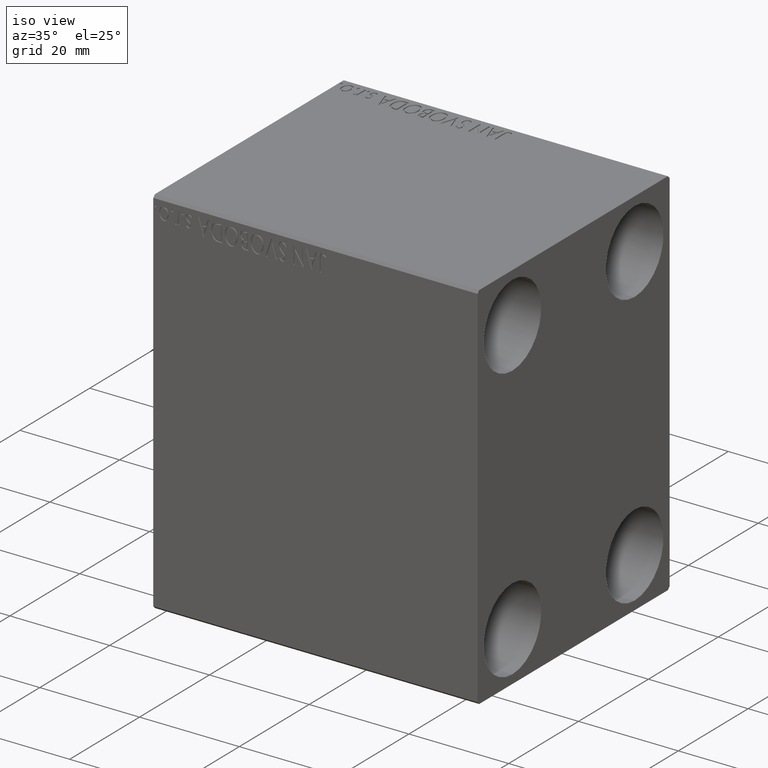
[diagram: clean part render]
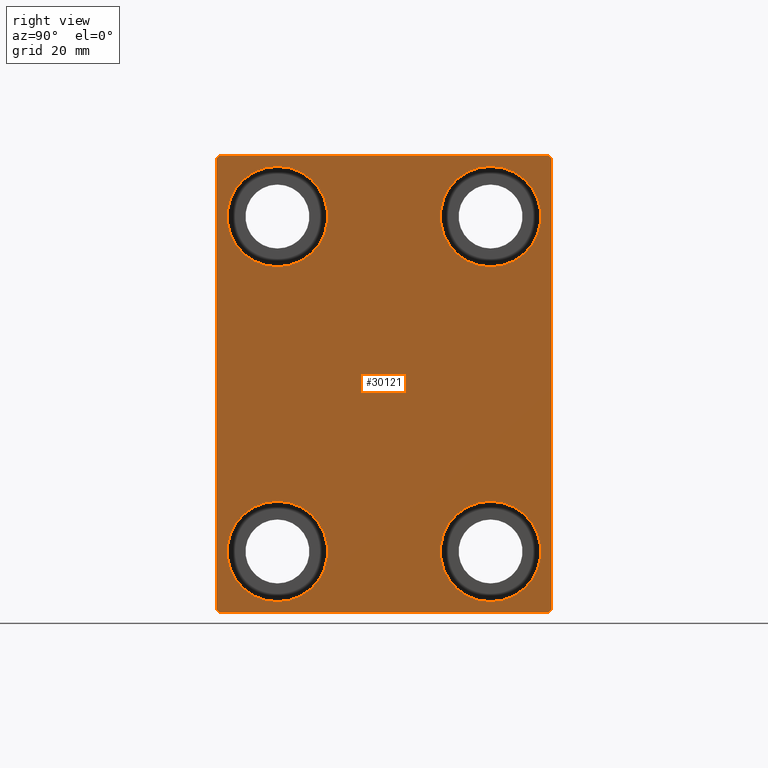
[diagram: tour spotlight — one face highlighted and labeled with its STEP entity id]
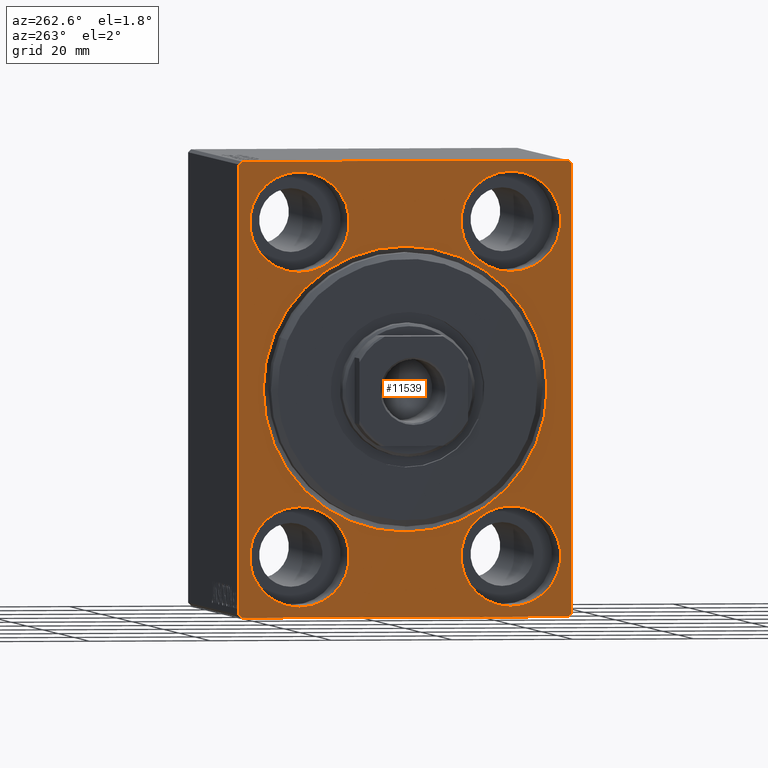
[diagram: tour spotlight — one face highlighted and labeled with its STEP entity id]
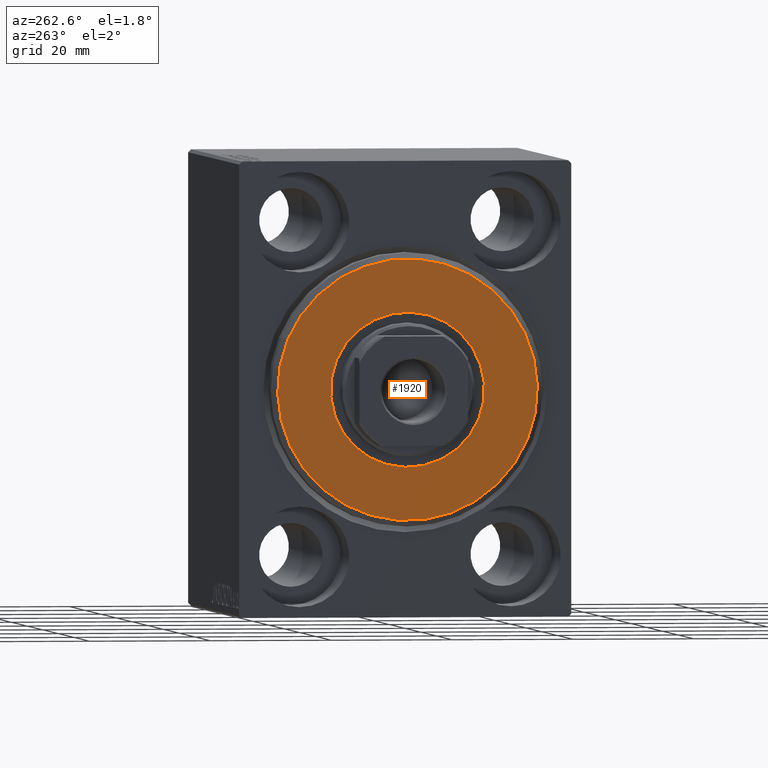
[diagram: tour spotlight — one face highlighted and labeled with its STEP entity id]
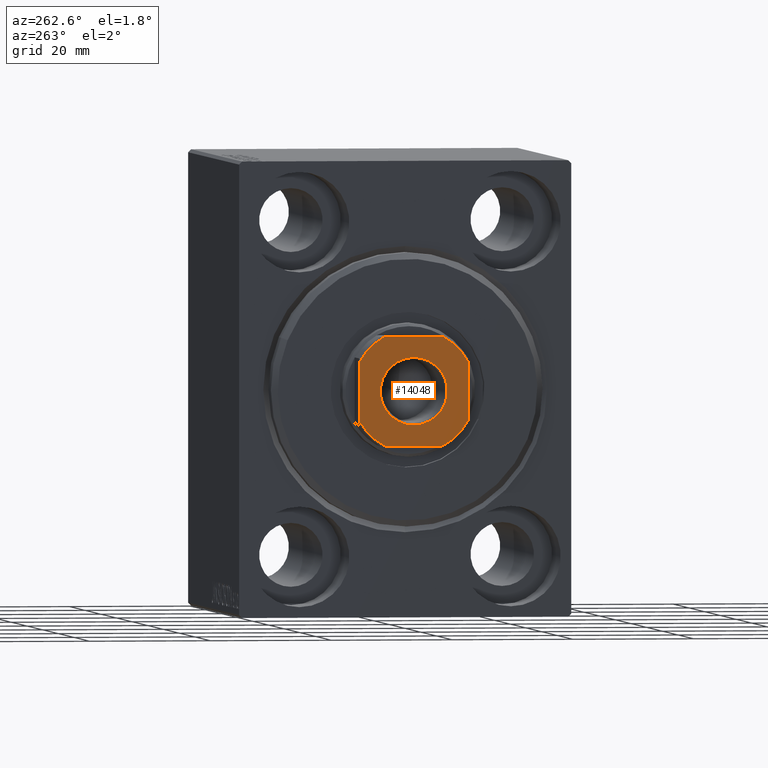
[diagram: tour spotlight — one face highlighted and labeled with its STEP entity id]
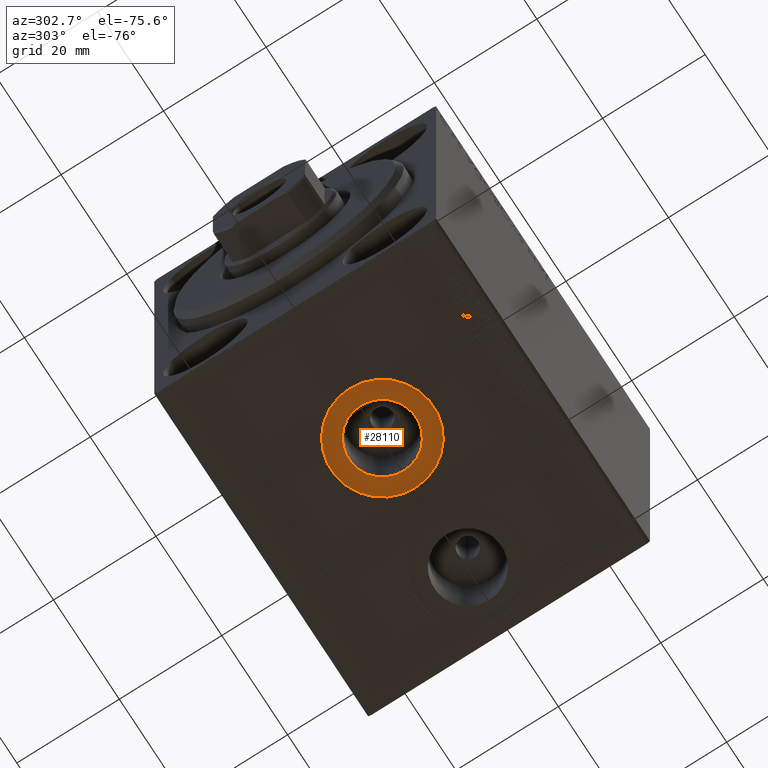
[diagram: tour spotlight — one face highlighted and labeled with its STEP entity id]
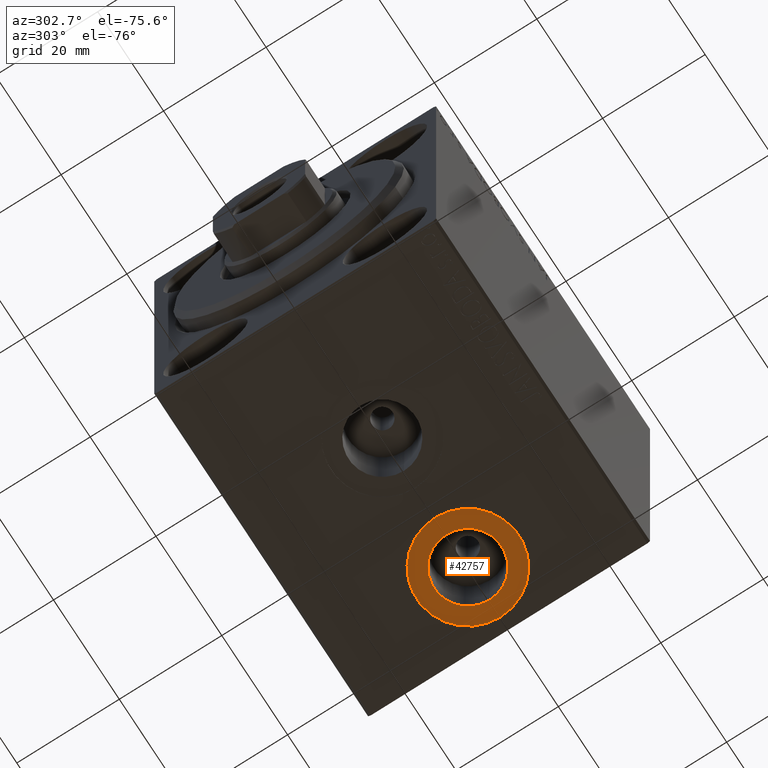
[diagram: tour spotlight — one face highlighted and labeled with its STEP entity id]
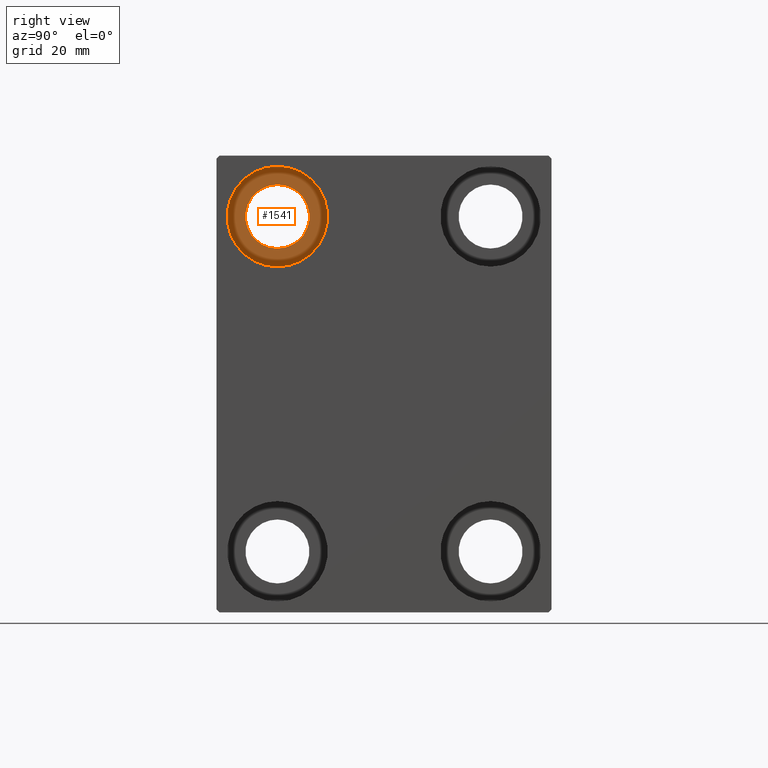
[diagram: tour spotlight — one face highlighted and labeled with its STEP entity id]
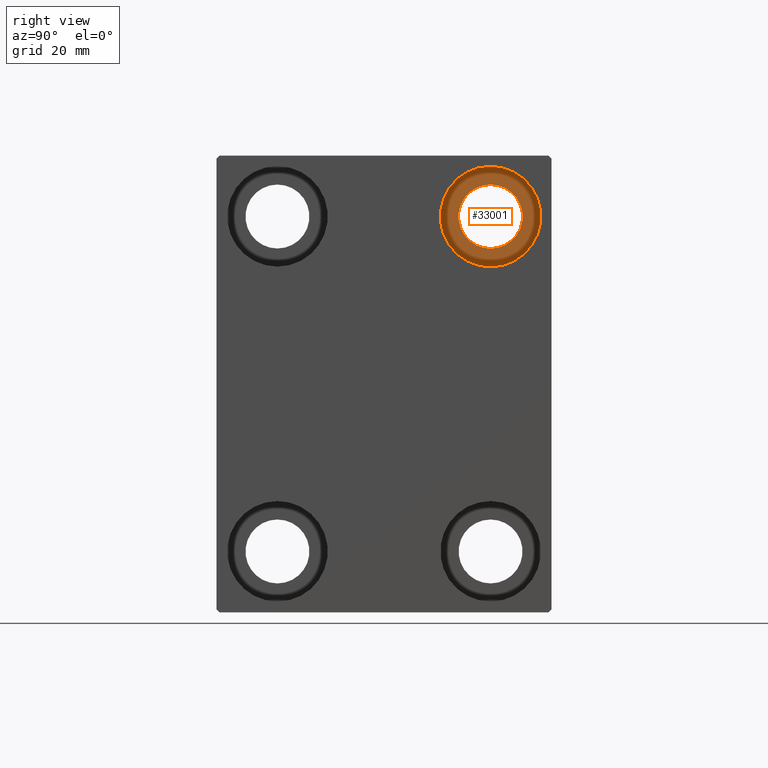
[diagram: tour spotlight — one face highlighted and labeled with its STEP entity id]
A machine part: a face-by-face anatomy tour. The part has 863 B-rep faces; the first image is the clean iso view, then the 8 largest visible faces are spotlighted one at a time (largest first), each with its STEP entity span.

Face 1 — right view, entity #30121. In plain terms, the highlighted planar face has unit normal (1, 0, 0).
Definition (entity closure, byte-faithful):
#98 = CARTESIAN_POINT ( 'NONE',  ( 65.00000000000000000, 27.49999999999999645, 37.00000000000001421 ) ) ;
#599 = EDGE_CURVE ( 'NONE', #32429, #30256, #36534, .T. ) ;
#761 = CARTESIAN_POINT ( 'NONE',  ( 65.00000000000000000, 32.25000000000000000, -32.25000000000000000 ) ) ;
#989 = CARTESIAN_POINT ( 'NONE',  ( 65.00000000000000000, -27.00000000000001776, 37.50000000000000000 ) ) ;
#1179 = AXIS2_PLACEMENT_3D ( 'NONE', #40835, #27710, #11004 ) ;
#1396 = VECTOR ( 'NONE', #28116, 1000.000000000000114 ) ;
#1515 = VECTOR ( 'NONE', #19771, 1000.000000000000114 ) ;
#2836 = EDGE_LOOP ( 'NONE', ( #11291, #17372, #38720, #3877, #37813, #42291, #23204, #38900 ) ) ;
#3219 = VERTEX_POINT ( 'NONE', #35655 ) ;
#3543 = EDGE_CURVE ( 'NONE', #36718, #31319, #25532, .T. ) ;
#3586 = CIRCLE ( 'NONE', #28461, 8.249999999999992895 ) ;
#3877 = ORIENTED_EDGE ( 'NONE', *, *, #26525, .T. ) ;
#4671 = CARTESIAN_POINT ( 'NONE',  ( 65.00000000000000000, 17.50000000000000355, 19.25000000000000000 ) ) ;
#5135 = DIRECTION ( 'NONE',  ( 0.000000000000000000, 0.000000000000000000, 1.000000000000000000 ) ) ;
#5476 = CARTESIAN_POINT ( 'NONE',  ( 65.00000000000000000, 17.49999999999999645, -35.75000000000000711 ) ) ;
#5935 = CARTESIAN_POINT ( 'NONE',  ( 65.00000000000000000, -17.49999999999999645, 27.49999999999999645 ) ) ;
#5950 = CARTESIAN_POINT ( 'NONE',  ( 65.00000000000000000, 17.50000000000000355, 27.49999999999999645 ) ) ;
#6148 = CARTESIAN_POINT ( 'NONE',  ( 65.00000000000000000, 32.25000000000019185, 32.24999999999975131 ) ) ;
#6959 = ORIENTED_EDGE ( 'NONE', *, *, #35752, .T. ) ;
#7450 = FACE_BOUND ( 'NONE', #19241, .T. ) ;
#8625 = CARTESIAN_POINT ( 'NONE',  ( 65.00000000000000000, -27.50000000000000355, 37.50000000000000000 ) ) ;
#8668 = CARTESIAN_POINT ( 'NONE',  ( 65.00000000000000000, 27.50000000000000355, -37.50000000000000000 ) ) ;
#9235 = DIRECTION ( 'NONE',  ( 0.000000000000000000, 0.000000000000000000, 1.000000000000000000 ) ) ;
#9704 = DIRECTION ( 'NONE',  ( -0.000000000000000000, -0.7071067811865426878, 0.7071067811865524577 ) ) ;
#10735 = EDGE_CURVE ( 'NONE', #24308, #18189, #21228, .T. ) ;
#11004 = DIRECTION ( 'NONE',  ( 0.000000000000000000, 0.000000000000000000, -1.000000000000000000 ) ) ;
#11066 = CARTESIAN_POINT ( 'NONE',  ( 65.00000000000000000, 17.49999999999999645, -19.25000000000000355 ) ) ;
#11109 = VERTEX_POINT ( 'NONE', #25107 ) ;
#11291 = ORIENTED_EDGE ( 'NONE', *, *, #599, .T. ) ;
#11778 = LINE ( 'NONE', #8668, #12699 ) ;
#12699 = VECTOR ( 'NONE', #34941, 1000.000000000000000 ) ;
#12752 = CIRCLE ( 'NONE', #33384, 8.249999999999992895 ) ;
#12831 = DIRECTION ( 'NONE',  ( -1.000000000000000000, -0.000000000000000000, -0.000000000000000000 ) ) ;
#12883 = EDGE_CURVE ( 'NONE', #43611, #32460, #12752, .T. ) ;
#13013 = DIRECTION ( 'NONE',  ( -1.000000000000000000, -0.000000000000000000, -0.000000000000000000 ) ) ;
#13064 = DIRECTION ( 'NONE',  ( 0.000000000000000000, 0.000000000000000000, 1.000000000000000000 ) ) ;
#13406 = DIRECTION ( 'NONE',  ( -1.000000000000000000, -0.000000000000000000, -0.000000000000000000 ) ) ;
#13696 = FACE_OUTER_BOUND ( 'NONE', #2836, .T. ) ;
#13907 = FACE_BOUND ( 'NONE', #34967, .T. ) ;
#14129 = FACE_BOUND ( 'NONE', #26330, .T. ) ;
#14473 = CARTESIAN_POINT ( 'NONE',  ( 65.00000000000000000, 27.00000000000000355, -37.50000000000000000 ) ) ;
#15846 = DIRECTION ( 'NONE',  ( -1.000000000000000000, -0.000000000000000000, -0.000000000000000000 ) ) ;
#15876 = CARTESIAN_POINT ( 'NONE',  ( 65.00000000000000000, -27.50000000000000355, -37.00000000000000000 ) ) ;
#16269 = AXIS2_PLACEMENT_3D ( 'NONE', #38186, #18381, #21935 ) ;
#16356 = EDGE_CURVE ( 'NONE', #3219, #34688, #3586, .T. ) ;
#16361 = CARTESIAN_POINT ( 'NONE',  ( 65.00000000000000000, -17.50000000000000355, -27.50000000000000355 ) ) ;
#16978 = ORIENTED_EDGE ( 'NONE', *, *, #21692, .T. ) ;
#17372 = ORIENTED_EDGE ( 'NONE', *, *, #23091, .T. ) ;
#18189 = VERTEX_POINT ( 'NONE', #11066 ) ;
#18381 = DIRECTION ( 'NONE',  ( -1.000000000000000000, -0.000000000000000000, -0.000000000000000000 ) ) ;
#19135 = CIRCLE ( 'NONE', #27648, 8.249999999999992895 ) ;
#19241 = EDGE_LOOP ( 'NONE', ( #26247, #6959 ) ) ;
#19313 = EDGE_LOOP ( 'NONE', ( #16978, #29129 ) ) ;
#19469 = CARTESIAN_POINT ( 'NONE',  ( 65.00000000000000000, -27.00000000000000355, -37.50000000000000000 ) ) ;
#19531 = DIRECTION ( 'NONE',  ( -1.000000000000000000, -0.000000000000000000, -0.000000000000000000 ) ) ;
#19548 = LINE ( 'NONE', #43342, #1515 ) ;
#19771 = DIRECTION ( 'NONE',  ( 0.000000000000000000, -0.7071067811865474617, -0.7071067811865474617 ) ) ;
#19847 = CARTESIAN_POINT ( 'NONE',  ( 65.00000000000000000, 27.49999999999999645, 37.50000000000000711 ) ) ;
#19964 = CARTESIAN_POINT ( 'NONE',  ( 65.00000000000000000, 27.50000000000000355, -37.00000000000000000 ) ) ;
#20186 = VERTEX_POINT ( 'NONE', #19964 ) ;
#20385 = VERTEX_POINT ( 'NONE', #42374 ) ;
#20501 = AXIS2_PLACEMENT_3D ( 'NONE', #5935, #12831, #25962 ) ;
#20536 = DIRECTION ( 'NONE',  ( 0.000000000000000000, 0.000000000000000000, 1.000000000000000000 ) ) ;
#20607 = AXIS2_PLACEMENT_3D ( 'NONE', #16361, #13013, #9235 ) ;
#21228 = CIRCLE ( 'NONE', #23341, 8.250000000000000000 ) ;
#21338 = LINE ( 'NONE', #34897, #37337 ) ;
#21692 = EDGE_CURVE ( 'NONE', #20385, #11109, #26447, .T. ) ;
#21883 = LINE ( 'NONE', #761, #1396 ) ;
#21935 = DIRECTION ( 'NONE',  ( 0.000000000000000000, 0.000000000000000000, 1.000000000000000000 ) ) ;
#22241 = EDGE_CURVE ( 'NONE', #42733, #38491, #37065, .T. ) ;
#22633 = DIRECTION ( 'NONE',  ( 0.000000000000000000, 0.000000000000000000, -1.000000000000000000 ) ) ;
#23091 = EDGE_CURVE ( 'NONE', #30256, #36718, #19548, .T. ) ;
#23204 = ORIENTED_EDGE ( 'NONE', *, *, #40600, .T. ) ;
#23252 = ORIENTED_EDGE ( 'NONE', *, *, #10735, .T. ) ;
#23341 = AXIS2_PLACEMENT_3D ( 'NONE', #42493, #42920, #5135 ) ;
#24308 = VERTEX_POINT ( 'NONE', #5476 ) ;
#25107 = CARTESIAN_POINT ( 'NONE',  ( 65.00000000000000000, -17.50000000000000355, -19.25000000000000355 ) ) ;
#25532 = LINE ( 'NONE', #8625, #31125 ) ;
#25962 = DIRECTION ( 'NONE',  ( 0.000000000000000000, 0.000000000000000000, 1.000000000000000000 ) ) ;
#26016 = CARTESIAN_POINT ( 'NONE',  ( 65.00000000000000000, -27.50000000000000355, 37.00000000000001421 ) ) ;
#26247 = ORIENTED_EDGE ( 'NONE', *, *, #12883, .T. ) ;
#26330 = EDGE_LOOP ( 'NONE', ( #27647, #30171 ) ) ;
#26447 = CIRCLE ( 'NONE', #28581, 8.250000000000000000 ) ;
#26525 = EDGE_CURVE ( 'NONE', #31319, #42733, #21338, .T. ) ;
#27273 = PLANE ( 'NONE',  #1179 ) ;
#27516 = VECTOR ( 'NONE', #37410, 1000.000000000000000 ) ;
#27647 = ORIENTED_EDGE ( 'NONE', *, *, #37115, .T. ) ;
#27648 = AXIS2_PLACEMENT_3D ( 'NONE', #37040, #34360, #37253 ) ;
#27710 = DIRECTION ( 'NONE',  ( 1.000000000000000000, 0.000000000000000000, 0.000000000000000000 ) ) ;
#27872 = CARTESIAN_POINT ( 'NONE',  ( 65.00000000000000000, -17.49999999999999645, 35.74999999999999289 ) ) ;
#27927 = FACE_BOUND ( 'NONE', #19313, .T. ) ;
#28116 = DIRECTION ( 'NONE',  ( -0.000000000000000000, 0.7071067811865474617, 0.7071067811865474617 ) ) ;
#28403 = CIRCLE ( 'NONE', #20607, 8.250000000000000000 ) ;
#28461 = AXIS2_PLACEMENT_3D ( 'NONE', #5950, #19531, #13064 ) ;
#28581 = AXIS2_PLACEMENT_3D ( 'NONE', #39447, #13406, #20536 ) ;
#28978 = CARTESIAN_POINT ( 'NONE',  ( 65.00000000000000000, -17.49999999999999645, 27.49999999999999645 ) ) ;
#29129 = ORIENTED_EDGE ( 'NONE', *, *, #44026, .T. ) ;
#29411 = DIRECTION ( 'NONE',  ( 0.000000000000000000, 0.000000000000000000, 1.000000000000000000 ) ) ;
#29713 = DIRECTION ( 'NONE',  ( 0.000000000000000000, 1.000000000000000000, 0.000000000000000000 ) ) ;
#30121 = ADVANCED_FACE ( 'NONE', ( #13907, #7450, #14129, #27927, #13696 ), #27273, .T. ) ;
#30171 = ORIENTED_EDGE ( 'NONE', *, *, #16356, .T. ) ;
#30256 = VERTEX_POINT ( 'NONE', #989 ) ;
#31125 = VECTOR ( 'NONE', #22633, 1000.000000000000000 ) ;
#31319 = VERTEX_POINT ( 'NONE', #15876 ) ;
#32001 = DIRECTION ( 'NONE',  ( -0.000000000000000000, 0.7071067811865474617, -0.7071067811865474617 ) ) ;
#32429 = VERTEX_POINT ( 'NONE', #34536 ) ;
#32460 = VERTEX_POINT ( 'NONE', #27872 ) ;
#33075 = LINE ( 'NONE', #6148, #37585 ) ;
#33384 = AXIS2_PLACEMENT_3D ( 'NONE', #28978, #15846, #29411 ) ;
#34360 = DIRECTION ( 'NONE',  ( -1.000000000000000000, -0.000000000000000000, -0.000000000000000000 ) ) ;
#34536 = CARTESIAN_POINT ( 'NONE',  ( 65.00000000000000000, 27.00000000000001066, 37.50000000000000711 ) ) ;
#34688 = VERTEX_POINT ( 'NONE', #4671 ) ;
#34897 = CARTESIAN_POINT ( 'NONE',  ( 65.00000000000000000, -32.25000000000000000, -32.25000000000000000 ) ) ;
#34941 = DIRECTION ( 'NONE',  ( 0.000000000000000000, -9.251858538542970348E-17, 1.000000000000000000 ) ) ;
#34967 = EDGE_LOOP ( 'NONE', ( #23252, #40154 ) ) ;
#35655 = CARTESIAN_POINT ( 'NONE',  ( 65.00000000000000000, 17.50000000000000355, 35.74999999999999289 ) ) ;
#35752 = EDGE_CURVE ( 'NONE', #32460, #43611, #41108, .T. ) ;
#36534 = LINE ( 'NONE', #19847, #27516 ) ;
#36718 = VERTEX_POINT ( 'NONE', #26016 ) ;
#37002 = EDGE_CURVE ( 'NONE', #18189, #24308, #43249, .T. ) ;
#37040 = CARTESIAN_POINT ( 'NONE',  ( 65.00000000000000000, 17.50000000000000355, 27.49999999999999645 ) ) ;
#37065 = LINE ( 'NONE', #40394, #42102 ) ;
#37074 = VERTEX_POINT ( 'NONE', #98 ) ;
#37115 = EDGE_CURVE ( 'NONE', #34688, #3219, #19135, .T. ) ;
#37253 = DIRECTION ( 'NONE',  ( 0.000000000000000000, 0.000000000000000000, 1.000000000000000000 ) ) ;
#37337 = VECTOR ( 'NONE', #32001, 1000.000000000000114 ) ;
#37410 = DIRECTION ( 'NONE',  ( 0.000000000000000000, -1.000000000000000000, -1.261617073437677999E-16 ) ) ;
#37585 = VECTOR ( 'NONE', #9704, 1000.000000000000000 ) ;
#37813 = ORIENTED_EDGE ( 'NONE', *, *, #22241, .T. ) ;
#38186 = CARTESIAN_POINT ( 'NONE',  ( 65.00000000000000000, 17.49999999999999645, -27.50000000000000355 ) ) ;
#38491 = VERTEX_POINT ( 'NONE', #14473 ) ;
#38685 = CARTESIAN_POINT ( 'NONE',  ( 65.00000000000000000, -17.49999999999999645, 19.25000000000000000 ) ) ;
#38720 = ORIENTED_EDGE ( 'NONE', *, *, #3543, .T. ) ;
#38900 = ORIENTED_EDGE ( 'NONE', *, *, #40941, .T. ) ;
#39447 = CARTESIAN_POINT ( 'NONE',  ( 65.00000000000000000, -17.50000000000000355, -27.50000000000000355 ) ) ;
#40154 = ORIENTED_EDGE ( 'NONE', *, *, #37002, .T. ) ;
#40394 = CARTESIAN_POINT ( 'NONE',  ( 65.00000000000000000, -27.50000000000000355, -37.50000000000000000 ) ) ;
#40600 = EDGE_CURVE ( 'NONE', #20186, #37074, #11778, .T. ) ;
#40835 = CARTESIAN_POINT ( 'NONE',  ( 65.00000000000000000, 0.000000000000000000, 0.000000000000000000 ) ) ;
#40941 = EDGE_CURVE ( 'NONE', #37074, #32429, #33075, .T. ) ;
#41108 = CIRCLE ( 'NONE', #20501, 8.249999999999992895 ) ;
#42102 = VECTOR ( 'NONE', #29713, 1000.000000000000000 ) ;
#42291 = ORIENTED_EDGE ( 'NONE', *, *, #43157, .T. ) ;
#42374 = CARTESIAN_POINT ( 'NONE',  ( 65.00000000000000000, -17.50000000000000355, -35.75000000000000711 ) ) ;
#42493 = CARTESIAN_POINT ( 'NONE',  ( 65.00000000000000000, 17.49999999999999645, -27.50000000000000355 ) ) ;
#42733 = VERTEX_POINT ( 'NONE', #19469 ) ;
#42920 = DIRECTION ( 'NONE',  ( -1.000000000000000000, -0.000000000000000000, -0.000000000000000000 ) ) ;
#43157 = EDGE_CURVE ( 'NONE', #38491, #20186, #21883, .T. ) ;
#43249 = CIRCLE ( 'NONE', #16269, 8.250000000000000000 ) ;
#43342 = CARTESIAN_POINT ( 'NONE',  ( 65.00000000000000000, -32.25000000000000711, 32.25000000000000711 ) ) ;
#43611 = VERTEX_POINT ( 'NONE', #38685 ) ;
#44026 = EDGE_CURVE ( 'NONE', #11109, #20385, #28403, .T. ) ;

Face 2 — auxiliary view, entity #11539. In plain terms, the highlighted planar face has unit normal (1, 0, 0).
Definition (entity closure, byte-faithful):
#642 = DIRECTION ( 'NONE',  ( 0.000000000000000000, -0.7071067811865474617, -0.7071067811865474617 ) ) ;
#654 = AXIS2_PLACEMENT_3D ( 'NONE', #17769, #1275, #4623 ) ;
#1189 = DIRECTION ( 'NONE',  ( 0.000000000000000000, 0.000000000000000000, 1.000000000000000000 ) ) ;
#1275 = DIRECTION ( 'NONE',  ( -1.000000000000000000, 0.000000000000000000, 0.000000000000000000 ) ) ;
#1334 = CIRCLE ( 'NONE', #654, 8.249999999999992895 ) ;
#2422 = CARTESIAN_POINT ( 'NONE',  ( 0.000000000000000000, -17.49999999999999645, 19.25000000000000000 ) ) ;
#2745 = AXIS2_PLACEMENT_3D ( 'NONE', #3158, #36548, #37209 ) ;
#2863 = EDGE_CURVE ( 'NONE', #20121, #25001, #32855, .T. ) ;
#3158 = CARTESIAN_POINT ( 'NONE',  ( 0.000000000000000000, 17.49999999999999645, -27.50000000000000355 ) ) ;
#3474 = CIRCLE ( 'NONE', #36152, 23.50000000000001776 ) ;
#3819 = CARTESIAN_POINT ( 'NONE',  ( 0.000000000000000000, 27.50000000000000355, -37.50000000000000000 ) ) ;
#4536 = DIRECTION ( 'NONE',  ( 0.000000000000000000, 0.000000000000000000, -1.000000000000000000 ) ) ;
#4623 = DIRECTION ( 'NONE',  ( 0.000000000000000000, 0.000000000000000000, 1.000000000000000000 ) ) ;
#4820 = CARTESIAN_POINT ( 'NONE',  ( 0.000000000000000000, 17.50000000000000355, 35.74999999999999289 ) ) ;
#4881 = CIRCLE ( 'NONE', #21932, 8.250000000000000000 ) ;
#5241 = EDGE_LOOP ( 'NONE', ( #35364, #26739 ) ) ;
#5954 = VERTEX_POINT ( 'NONE', #28430 ) ;
#5985 = DIRECTION ( 'NONE',  ( -1.000000000000000000, 0.000000000000000000, 0.000000000000000000 ) ) ;
#6824 = EDGE_CURVE ( 'NONE', #41565, #21162, #43837, .T. ) ;
#6872 = CARTESIAN_POINT ( 'NONE',  ( 0.000000000000000000, 27.50000000000000355, -37.00000000000000000 ) ) ;
#7054 = AXIS2_PLACEMENT_3D ( 'NONE', #36489, #9124, #4536 ) ;
#7097 = LINE ( 'NONE', #6872, #21265 ) ;
#7587 = DIRECTION ( 'NONE',  ( 0.000000000000000000, 0.000000000000000000, 1.000000000000000000 ) ) ;
#7693 = CARTESIAN_POINT ( 'NONE',  ( 0.000000000000000000, 17.50000000000000355, 27.49999999999999645 ) ) ;
#8150 = ORIENTED_EDGE ( 'NONE', *, *, #11337, .T. ) ;
#8553 = DIRECTION ( 'NONE',  ( 0.000000000000000000, 0.000000000000000000, -1.000000000000000000 ) ) ;
#8640 = CIRCLE ( 'NONE', #33508, 8.250000000000000000 ) ;
#8665 = CARTESIAN_POINT ( 'NONE',  ( 0.000000000000000000, 17.49999999999999645, -35.75000000000000711 ) ) ;
#8979 = LINE ( 'NONE', #25885, #9056 ) ;
#9056 = VECTOR ( 'NONE', #8553, 1000.000000000000000 ) ;
#9124 = DIRECTION ( 'NONE',  ( 1.000000000000000000, 0.000000000000000000, 0.000000000000000000 ) ) ;
#9294 = EDGE_CURVE ( 'NONE', #32549, #5954, #22614, .T. ) ;
#9331 = EDGE_CURVE ( 'NONE', #14145, #25001, #18054, .T. ) ;
#10037 = EDGE_CURVE ( 'NONE', #33890, #29724, #37578, .T. ) ;
#10272 = DIRECTION ( 'NONE',  ( 0.000000000000000000, -9.251858538542970348E-17, 1.000000000000000000 ) ) ;
#10778 = CARTESIAN_POINT ( 'NONE',  ( 0.000000000000000000, 17.50000000000000355, 27.49999999999999645 ) ) ;
#11047 = EDGE_LOOP ( 'NONE', ( #27465, #40716 ) ) ;
#11321 = ORIENTED_EDGE ( 'NONE', *, *, #37572, .F. ) ;
#11337 = EDGE_CURVE ( 'NONE', #16134, #22721, #25487, .T. ) ;
#11539 = ADVANCED_FACE ( 'NONE', ( #43144, #41907, #12674, #21460, #39383, #39830 ), #42927, .F. ) ;
#11975 = LINE ( 'NONE', #38256, #20274 ) ;
#12210 = VERTEX_POINT ( 'NONE', #21896 ) ;
#12674 = FACE_BOUND ( 'NONE', #15771, .T. ) ;
#12923 = CARTESIAN_POINT ( 'NONE',  ( 0.000000000000000000, -27.50000000000000355, -37.00000000000000000 ) ) ;
#13502 = DIRECTION ( 'NONE',  ( 0.000000000000000000, 0.000000000000000000, -1.000000000000000000 ) ) ;
#13725 = EDGE_CURVE ( 'NONE', #21162, #41565, #26960, .T. ) ;
#14145 = VERTEX_POINT ( 'NONE', #34474 ) ;
#14262 = LINE ( 'NONE', #31604, #34970 ) ;
#15564 = ORIENTED_EDGE ( 'NONE', *, *, #38711, .F. ) ;
#15714 = CARTESIAN_POINT ( 'NONE',  ( 0.000000000000000000, 0.000000000000000000, 0.000000000000000000 ) ) ;
#15771 = EDGE_LOOP ( 'NONE', ( #15564, #11321 ) ) ;
#15775 = VECTOR ( 'NONE', #17285, 1000.000000000000114 ) ;
#15940 = CARTESIAN_POINT ( 'NONE',  ( 0.000000000000000000, -17.50000000000000355, -27.50000000000000355 ) ) ;
#16134 = VERTEX_POINT ( 'NONE', #21126 ) ;
#16424 = VERTEX_POINT ( 'NONE', #26632 ) ;
#16836 = ORIENTED_EDGE ( 'NONE', *, *, #33186, .F. ) ;
#16908 = AXIS2_PLACEMENT_3D ( 'NONE', #15714, #42403, #32847 ) ;
#17285 = DIRECTION ( 'NONE',  ( -0.000000000000000000, 0.7071067811865474617, 0.7071067811865474617 ) ) ;
#17769 = CARTESIAN_POINT ( 'NONE',  ( 0.000000000000000000, -17.49999999999999645, 27.49999999999999645 ) ) ;
#18054 = LINE ( 'NONE', #3819, #24734 ) ;
#18816 = CARTESIAN_POINT ( 'NONE',  ( 0.000000000000000000, -27.00000000000000355, -37.50000000000000000 ) ) ;
#19137 = EDGE_CURVE ( 'NONE', #5954, #32549, #8640, .T. ) ;
#19168 = CIRCLE ( 'NONE', #34792, 8.249999999999992895 ) ;
#19170 = CARTESIAN_POINT ( 'NONE',  ( 0.000000000000000000, -17.50000000000000355, -19.25000000000000355 ) ) ;
#19692 = DIRECTION ( 'NONE',  ( -0.000000000000000000, -0.7071067811865474617, 0.7071067811865474617 ) ) ;
#19723 = CARTESIAN_POINT ( 'NONE',  ( 0.000000000000000000, 27.00000000000001066, 37.50000000000000711 ) ) ;
#19791 = DIRECTION ( 'NONE',  ( 0.000000000000000000, 0.000000000000000000, 1.000000000000000000 ) ) ;
#19818 = ORIENTED_EDGE ( 'NONE', *, *, #13725, .F. ) ;
#19960 = EDGE_CURVE ( 'NONE', #20121, #24948, #14262, .T. ) ;
#20121 = VERTEX_POINT ( 'NONE', #43308 ) ;
#20171 = EDGE_CURVE ( 'NONE', #16424, #24948, #23292, .T. ) ;
#20274 = VECTOR ( 'NONE', #32225, 1000.000000000000000 ) ;
#21126 = CARTESIAN_POINT ( 'NONE',  ( 0.000000000000000000, -27.00000000000000355, -37.50000000000000000 ) ) ;
#21162 = VERTEX_POINT ( 'NONE', #4820 ) ;
#21265 = VECTOR ( 'NONE', #642, 1000.000000000000114 ) ;
#21460 = FACE_BOUND ( 'NONE', #30746, .T. ) ;
#21497 = CARTESIAN_POINT ( 'NONE',  ( 0.000000000000000000, -17.49999999999999645, 35.74999999999999289 ) ) ;
#21865 = CIRCLE ( 'NONE', #16908, 23.50000000000001776 ) ;
#21896 = CARTESIAN_POINT ( 'NONE',  ( 0.000000000000000000, 2.877919977996282293E-15, -23.50000000000001776 ) ) ;
#21932 = AXIS2_PLACEMENT_3D ( 'NONE', #30846, #24392, #23731 ) ;
#22410 = DIRECTION ( 'NONE',  ( 0.000000000000000000, 0.000000000000000000, 1.000000000000000000 ) ) ;
#22488 = ORIENTED_EDGE ( 'NONE', *, *, #32989, .T. ) ;
#22614 = CIRCLE ( 'NONE', #41792, 8.250000000000000000 ) ;
#22721 = VERTEX_POINT ( 'NONE', #12923 ) ;
#23292 = LINE ( 'NONE', #29973, #15775 ) ;
#23570 = CARTESIAN_POINT ( 'NONE',  ( 0.000000000000000000, -17.49999999999999645, 27.49999999999999645 ) ) ;
#23731 = DIRECTION ( 'NONE',  ( 0.000000000000000000, 0.000000000000000000, 1.000000000000000000 ) ) ;
#24288 = CARTESIAN_POINT ( 'NONE',  ( 0.000000000000000000, -17.50000000000000355, -27.50000000000000355 ) ) ;
#24360 = VERTEX_POINT ( 'NONE', #29286 ) ;
#24392 = DIRECTION ( 'NONE',  ( -1.000000000000000000, 0.000000000000000000, 0.000000000000000000 ) ) ;
#24705 = ORIENTED_EDGE ( 'NONE', *, *, #2863, .T. ) ;
#24734 = VECTOR ( 'NONE', #10272, 1000.000000000000000 ) ;
#24948 = VERTEX_POINT ( 'NONE', #36351 ) ;
#25001 = VERTEX_POINT ( 'NONE', #30558 ) ;
#25487 = LINE ( 'NONE', #18816, #36875 ) ;
#25531 = DIRECTION ( 'NONE',  ( -1.000000000000000000, 0.000000000000000000, 0.000000000000000000 ) ) ;
#25752 = EDGE_LOOP ( 'NONE', ( #22488, #28778 ) ) ;
#25885 = CARTESIAN_POINT ( 'NONE',  ( 0.000000000000000000, -27.50000000000000355, 37.50000000000000000 ) ) ;
#26594 = EDGE_CURVE ( 'NONE', #16134, #24360, #11975, .T. ) ;
#26632 = CARTESIAN_POINT ( 'NONE',  ( 0.000000000000000000, -27.50000000000000355, 37.00000000000001421 ) ) ;
#26739 = ORIENTED_EDGE ( 'NONE', *, *, #19137, .F. ) ;
#26960 = CIRCLE ( 'NONE', #32647, 8.249999999999992895 ) ;
#27299 = DIRECTION ( 'NONE',  ( 1.000000000000000000, 0.000000000000000000, 0.000000000000000000 ) ) ;
#27465 = ORIENTED_EDGE ( 'NONE', *, *, #36768, .F. ) ;
#28430 = CARTESIAN_POINT ( 'NONE',  ( 0.000000000000000000, -17.50000000000000355, -35.75000000000000711 ) ) ;
#28778 = ORIENTED_EDGE ( 'NONE', *, *, #36828, .T. ) ;
#29286 = CARTESIAN_POINT ( 'NONE',  ( 0.000000000000000000, 27.00000000000000355, -37.50000000000000000 ) ) ;
#29325 = ORIENTED_EDGE ( 'NONE', *, *, #41520, .T. ) ;
#29724 = VERTEX_POINT ( 'NONE', #35363 ) ;
#29973 = CARTESIAN_POINT ( 'NONE',  ( 0.000000000000000000, -27.50000000000000355, 37.00000000000001421 ) ) ;
#30460 = CARTESIAN_POINT ( 'NONE',  ( 0.000000000000000000, 17.50000000000000355, 19.25000000000000000 ) ) ;
#30558 = CARTESIAN_POINT ( 'NONE',  ( 0.000000000000000000, 27.49999999999999645, 37.00000000000001421 ) ) ;
#30746 = EDGE_LOOP ( 'NONE', ( #19818, #34852 ) ) ;
#30846 = CARTESIAN_POINT ( 'NONE',  ( 0.000000000000000000, 17.49999999999999645, -27.50000000000000355 ) ) ;
#31604 = CARTESIAN_POINT ( 'NONE',  ( 0.000000000000000000, 27.49999999999999645, 37.50000000000000711 ) ) ;
#31711 = DIRECTION ( 'NONE',  ( 0.000000000000000000, 0.000000000000000000, 1.000000000000000000 ) ) ;
#32052 = ORIENTED_EDGE ( 'NONE', *, *, #20171, .T. ) ;
#32225 = DIRECTION ( 'NONE',  ( 0.000000000000000000, 1.000000000000000000, 0.000000000000000000 ) ) ;
#32549 = VERTEX_POINT ( 'NONE', #19170 ) ;
#32647 = AXIS2_PLACEMENT_3D ( 'NONE', #10778, #34576, #1189 ) ;
#32847 = DIRECTION ( 'NONE',  ( 0.000000000000000000, 0.000000000000000000, -1.000000000000000000 ) ) ;
#32855 = LINE ( 'NONE', #19723, #33923 ) ;
#32989 = EDGE_CURVE ( 'NONE', #39903, #12210, #21865, .T. ) ;
#33186 = EDGE_CURVE ( 'NONE', #16424, #22721, #8979, .T. ) ;
#33508 = AXIS2_PLACEMENT_3D ( 'NONE', #15940, #25531, #22410 ) ;
#33890 = VERTEX_POINT ( 'NONE', #8665 ) ;
#33923 = VECTOR ( 'NONE', #37076, 1000.000000000000000 ) ;
#34306 = DIRECTION ( 'NONE',  ( -1.000000000000000000, 0.000000000000000000, 0.000000000000000000 ) ) ;
#34474 = CARTESIAN_POINT ( 'NONE',  ( 0.000000000000000000, 27.50000000000000355, -37.00000000000000000 ) ) ;
#34576 = DIRECTION ( 'NONE',  ( -1.000000000000000000, 0.000000000000000000, 0.000000000000000000 ) ) ;
#34792 = AXIS2_PLACEMENT_3D ( 'NONE', #23570, #5985, #19791 ) ;
#34852 = ORIENTED_EDGE ( 'NONE', *, *, #6824, .F. ) ;
#34970 = VECTOR ( 'NONE', #41610, 1000.000000000000000 ) ;
#35363 = CARTESIAN_POINT ( 'NONE',  ( 0.000000000000000000, 17.49999999999999645, -19.25000000000000355 ) ) ;
#35364 = ORIENTED_EDGE ( 'NONE', *, *, #9294, .F. ) ;
#36152 = AXIS2_PLACEMENT_3D ( 'NONE', #41510, #27299, #13502 ) ;
#36351 = CARTESIAN_POINT ( 'NONE',  ( 0.000000000000000000, -27.00000000000001776, 37.50000000000000000 ) ) ;
#36489 = CARTESIAN_POINT ( 'NONE',  ( 0.000000000000000000, 0.000000000000000000, 0.000000000000000000 ) ) ;
#36548 = DIRECTION ( 'NONE',  ( -1.000000000000000000, 0.000000000000000000, 0.000000000000000000 ) ) ;
#36737 = AXIS2_PLACEMENT_3D ( 'NONE', #7693, #41948, #31711 ) ;
#36768 = EDGE_CURVE ( 'NONE', #29724, #33890, #4881, .T. ) ;
#36828 = EDGE_CURVE ( 'NONE', #12210, #39903, #3474, .T. ) ;
#36875 = VECTOR ( 'NONE', #19692, 1000.000000000000114 ) ;
#37076 = DIRECTION ( 'NONE',  ( -0.000000000000000000, 0.7071067811865426878, -0.7071067811865524577 ) ) ;
#37209 = DIRECTION ( 'NONE',  ( 0.000000000000000000, 0.000000000000000000, 1.000000000000000000 ) ) ;
#37572 = EDGE_CURVE ( 'NONE', #38620, #41990, #1334, .T. ) ;
#37578 = CIRCLE ( 'NONE', #2745, 8.250000000000000000 ) ;
#38256 = CARTESIAN_POINT ( 'NONE',  ( 0.000000000000000000, -27.50000000000000355, -37.50000000000000000 ) ) ;
#38620 = VERTEX_POINT ( 'NONE', #2422 ) ;
#38711 = EDGE_CURVE ( 'NONE', #41990, #38620, #19168, .T. ) ;
#39383 = FACE_BOUND ( 'NONE', #5241, .T. ) ;
#39830 = FACE_OUTER_BOUND ( 'NONE', #41107, .T. ) ;
#39903 = VERTEX_POINT ( 'NONE', #43365 ) ;
#40716 = ORIENTED_EDGE ( 'NONE', *, *, #10037, .F. ) ;
#41107 = EDGE_LOOP ( 'NONE', ( #16836, #32052, #43652, #24705, #41861, #29325, #42154, #8150 ) ) ;
#41510 = CARTESIAN_POINT ( 'NONE',  ( 0.000000000000000000, 0.000000000000000000, 0.000000000000000000 ) ) ;
#41520 = EDGE_CURVE ( 'NONE', #14145, #24360, #7097, .T. ) ;
#41565 = VERTEX_POINT ( 'NONE', #30460 ) ;
#41610 = DIRECTION ( 'NONE',  ( 0.000000000000000000, -1.000000000000000000, -1.261617073437677999E-16 ) ) ;
#41792 = AXIS2_PLACEMENT_3D ( 'NONE', #24288, #34306, #7587 ) ;
#41861 = ORIENTED_EDGE ( 'NONE', *, *, #9331, .F. ) ;
#41907 = FACE_BOUND ( 'NONE', #11047, .T. ) ;
#41948 = DIRECTION ( 'NONE',  ( -1.000000000000000000, 0.000000000000000000, 0.000000000000000000 ) ) ;
#41990 = VERTEX_POINT ( 'NONE', #21497 ) ;
#42154 = ORIENTED_EDGE ( 'NONE', *, *, #26594, .F. ) ;
#42403 = DIRECTION ( 'NONE',  ( 1.000000000000000000, 0.000000000000000000, 0.000000000000000000 ) ) ;
#42927 = PLANE ( 'NONE',  #7054 ) ;
#43144 = FACE_BOUND ( 'NONE', #25752, .T. ) ;
#43308 = CARTESIAN_POINT ( 'NONE',  ( 0.000000000000000000, 27.00000000000001066, 37.50000000000000711 ) ) ;
#43365 = CARTESIAN_POINT ( 'NONE',  ( 0.000000000000000000, 0.000000000000000000, 23.50000000000001776 ) ) ;
#43652 = ORIENTED_EDGE ( 'NONE', *, *, #19960, .F. ) ;
#43837 = CIRCLE ( 'NONE', #36737, 8.249999999999992895 ) ;

Face 3 — auxiliary view, entity #1920. In plain terms, the highlighted planar face has unit normal (-1, 0, 0).
Definition (entity closure, byte-faithful):
#1448 = DIRECTION ( 'NONE',  ( 0.000000000000000000, 0.000000000000000000, -1.000000000000000000 ) ) ;
#1920 = ADVANCED_FACE ( 'NONE', ( #19975, #39777 ), #26631, .T. ) ;
#2783 = AXIS2_PLACEMENT_3D ( 'NONE', #40329, #33439, #43650 ) ;
#4220 = VERTEX_POINT ( 'NONE', #4736 ) ;
#4736 = CARTESIAN_POINT ( 'NONE',  ( 3.000000000000000000, 0.000000000000000000, 12.75000000000000000 ) ) ;
#5152 = ORIENTED_EDGE ( 'NONE', *, *, #39226, .T. ) ;
#6221 = AXIS2_PLACEMENT_3D ( 'NONE', #40207, #9727, #22874 ) ;
#6325 = DIRECTION ( 'NONE',  ( 0.000000000000000000, 0.000000000000000000, -1.000000000000000000 ) ) ;
#9727 = DIRECTION ( 'NONE',  ( 1.000000000000000000, -0.000000000000000000, 0.000000000000000000 ) ) ;
#10105 = DIRECTION ( 'NONE',  ( -1.000000000000000000, 0.000000000000000000, -0.000000000000000000 ) ) ;
#11319 = CIRCLE ( 'NONE', #34030, 12.75000000000000000 ) ;
#12276 = EDGE_CURVE ( 'NONE', #42080, #30233, #31921, .T. ) ;
#15308 = DIRECTION ( 'NONE',  ( 1.000000000000000000, -0.000000000000000000, 0.000000000000000000 ) ) ;
#16353 = EDGE_CURVE ( 'NONE', #30233, #42080, #17093, .T. ) ;
#17029 = VERTEX_POINT ( 'NONE', #35132 ) ;
#17093 = CIRCLE ( 'NONE', #41951, 21.50000000000000355 ) ;
#18372 = AXIS2_PLACEMENT_3D ( 'NONE', #43472, #10105, #6325 ) ;
#18667 = DIRECTION ( 'NONE',  ( 0.000000000000000000, 0.000000000000000000, -1.000000000000000000 ) ) ;
#19975 = FACE_OUTER_BOUND ( 'NONE', #23636, .T. ) ;
#22106 = ORIENTED_EDGE ( 'NONE', *, *, #37967, .T. ) ;
#22569 = CARTESIAN_POINT ( 'NONE',  ( 3.000000000000000000, 0.000000000000000000, 0.000000000000000000 ) ) ;
#22874 = DIRECTION ( 'NONE',  ( 0.000000000000000000, 0.000000000000000000, -1.000000000000000000 ) ) ;
#23636 = EDGE_LOOP ( 'NONE', ( #32901, #37204 ) ) ;
#24798 = CARTESIAN_POINT ( 'NONE',  ( 3.000000000000000000, 0.000000000000000000, 21.50000000000000355 ) ) ;
#25900 = DIRECTION ( 'NONE',  ( -1.000000000000000000, 0.000000000000000000, -0.000000000000000000 ) ) ;
#26631 = PLANE ( 'NONE',  #6221 ) ;
#30233 = VERTEX_POINT ( 'NONE', #24798 ) ;
#31921 = CIRCLE ( 'NONE', #2783, 21.50000000000000355 ) ;
#32901 = ORIENTED_EDGE ( 'NONE', *, *, #16353, .T. ) ;
#33096 = CARTESIAN_POINT ( 'NONE',  ( 3.000000000000000000, 0.000000000000000000, 0.000000000000000000 ) ) ;
#33439 = DIRECTION ( 'NONE',  ( 1.000000000000000000, -0.000000000000000000, 0.000000000000000000 ) ) ;
#33996 = CIRCLE ( 'NONE', #18372, 12.75000000000000000 ) ;
#34030 = AXIS2_PLACEMENT_3D ( 'NONE', #22569, #25900, #1448 ) ;
#35132 = CARTESIAN_POINT ( 'NONE',  ( 3.000000000000000000, 1.561424668912874914E-15, -12.75000000000000000 ) ) ;
#37204 = ORIENTED_EDGE ( 'NONE', *, *, #12276, .T. ) ;
#37469 = CARTESIAN_POINT ( 'NONE',  ( 3.000000000000000000, 2.694222958124177598E-15, -21.50000000000000355 ) ) ;
#37967 = EDGE_CURVE ( 'NONE', #4220, #17029, #11319, .T. ) ;
#39226 = EDGE_CURVE ( 'NONE', #17029, #4220, #33996, .T. ) ;
#39777 = FACE_BOUND ( 'NONE', #43272, .T. ) ;
#40207 = CARTESIAN_POINT ( 'NONE',  ( 3.000000000000000000, 0.000000000000000000, 0.000000000000000000 ) ) ;
#40329 = CARTESIAN_POINT ( 'NONE',  ( 3.000000000000000000, 0.000000000000000000, 0.000000000000000000 ) ) ;
#41951 = AXIS2_PLACEMENT_3D ( 'NONE', #33096, #15308, #18667 ) ;
#42080 = VERTEX_POINT ( 'NONE', #37469 ) ;
#43272 = EDGE_LOOP ( 'NONE', ( #22106, #5152 ) ) ;
#43472 = CARTESIAN_POINT ( 'NONE',  ( 3.000000000000000000, 0.000000000000000000, 0.000000000000000000 ) ) ;
#43650 = DIRECTION ( 'NONE',  ( 0.000000000000000000, 0.000000000000000000, -1.000000000000000000 ) ) ;

Face 4 — auxiliary view, entity #14048. In plain terms, the highlighted planar face has unit normal (-1, 0, 0).
Definition (entity closure, byte-faithful):
#572 = CIRCLE ( 'NONE', #25440, 5.549999999999998934 ) ;
#590 = DIRECTION ( 'NONE',  ( 1.000000000000000000, 0.000000000000000000, 0.000000000000000000 ) ) ;
#593 = VERTEX_POINT ( 'NONE', #12946 ) ;
#618 = AXIS2_PLACEMENT_3D ( 'NONE', #17887, #21445, #1173 ) ;
#1173 = DIRECTION ( 'NONE',  ( 1.000000000000000000, 0.000000000000000000, 0.000000000000000000 ) ) ;
#1210 = ORIENTED_EDGE ( 'NONE', *, *, #39580, .T. ) ;
#2696 = DIRECTION ( 'NONE',  ( 1.000000000000000000, 0.000000000000000000, 0.000000000000000000 ) ) ;
#3388 = ORIENTED_EDGE ( 'NONE', *, *, #12776, .T. ) ;
#4866 = EDGE_CURVE ( 'NONE', #35637, #25833, #29025, .T. ) ;
#5256 = DIRECTION ( 'NONE',  ( -0.000000000000000000, 0.000000000000000000, 1.000000000000000000 ) ) ;
#5829 = LINE ( 'NONE', #25420, #36855 ) ;
#6269 = CARTESIAN_POINT ( 'NONE',  ( -9.000000000000001776, 8.999999999999998224, 61.99999999999999289 ) ) ;
#6430 = DIRECTION ( 'NONE',  ( 0.000000000000000000, -0.000000000000000000, -1.000000000000000000 ) ) ;
#7433 = LINE ( 'NONE', #14546, #41883 ) ;
#8039 = DIRECTION ( 'NONE',  ( -0.000000000000000000, 0.000000000000000000, 1.000000000000000000 ) ) ;
#8952 = ORIENTED_EDGE ( 'NONE', *, *, #36791, .T. ) ;
#8969 = ORIENTED_EDGE ( 'NONE', *, *, #13747, .T. ) ;
#9317 = EDGE_CURVE ( 'NONE', #29691, #38204, #572, .T. ) ;
#9590 = CARTESIAN_POINT ( 'NONE',  ( -4.800000000000001599, 8.999999999999998224, 61.99999999999999289 ) ) ;
#10934 = VERTEX_POINT ( 'NONE', #14220 ) ;
#10963 = CARTESIAN_POINT ( 'NONE',  ( -4.800000000000017586, -9.000000000000001776, 61.99999999999999289 ) ) ;
#11287 = AXIS2_PLACEMENT_3D ( 'NONE', #40649, #31058, #590 ) ;
#11435 = VERTEX_POINT ( 'NONE', #29692 ) ;
#11845 = LINE ( 'NONE', #26295, #24145 ) ;
#11927 = CARTESIAN_POINT ( 'NONE',  ( 0.000000000000000000, 0.000000000000000000, 61.99999999999999289 ) ) ;
#12776 = EDGE_CURVE ( 'NONE', #31491, #24458, #31957, .T. ) ;
#12848 = EDGE_CURVE ( 'NONE', #10934, #11435, #11845, .T. ) ;
#12946 = CARTESIAN_POINT ( 'NONE',  ( 4.800000000000029132, -9.000000000000001776, 61.99999999999999289 ) ) ;
#13004 = DIRECTION ( 'NONE',  ( -0.000000000000000000, 0.000000000000000000, 1.000000000000000000 ) ) ;
#13316 = DIRECTION ( 'NONE',  ( 1.000000000000000000, 0.000000000000000000, 0.000000000000000000 ) ) ;
#13747 = EDGE_CURVE ( 'NONE', #14752, #31491, #7433, .T. ) ;
#13980 = CARTESIAN_POINT ( 'NONE',  ( -8.999999999999998224, -4.800000000000022027, 61.99999999999999289 ) ) ;
#14048 = ADVANCED_FACE ( 'NONE', ( #18718, #15152 ), #25607, .T. ) ;
#14105 = AXIS2_PLACEMENT_3D ( 'NONE', #22809, #13004, #36375 ) ;
#14220 = CARTESIAN_POINT ( 'NONE',  ( 9.000000000000001776, -4.800000000000030020, 61.99999999999999289 ) ) ;
#14546 = CARTESIAN_POINT ( 'NONE',  ( -9.000000000000001776, 8.999999999999998224, 61.99999999999999289 ) ) ;
#14752 = VERTEX_POINT ( 'NONE', #23195 ) ;
#15152 = FACE_OUTER_BOUND ( 'NONE', #33668, .T. ) ;
#16184 = ORIENTED_EDGE ( 'NONE', *, *, #35611, .T. ) ;
#17176 = DIRECTION ( 'NONE',  ( 1.000000000000000000, 0.000000000000000000, 0.000000000000000000 ) ) ;
#17580 = CARTESIAN_POINT ( 'NONE',  ( 5.549999999999998934, 0.000000000000000000, 61.99999999999999289 ) ) ;
#17887 = CARTESIAN_POINT ( 'NONE',  ( 0.000000000000000000, 0.000000000000000000, 61.99999999999999289 ) ) ;
#18718 = FACE_BOUND ( 'NONE', #39768, .T. ) ;
#18832 = DIRECTION ( 'NONE',  ( 1.000000000000000000, 0.000000000000000000, 0.000000000000000000 ) ) ;
#21237 = VECTOR ( 'NONE', #33851, 1000.000000000000000 ) ;
#21402 = DIRECTION ( 'NONE',  ( 0.000000000000000000, -0.000000000000000000, -1.000000000000000000 ) ) ;
#21445 = DIRECTION ( 'NONE',  ( -0.000000000000000000, 0.000000000000000000, 1.000000000000000000 ) ) ;
#21928 = CIRCLE ( 'NONE', #618, 10.20000000000001528 ) ;
#22091 = CARTESIAN_POINT ( 'NONE',  ( -5.549999999999998934, 6.796789735267809794E-16, 61.99999999999999289 ) ) ;
#22271 = CARTESIAN_POINT ( 'NONE',  ( 0.000000000000000000, 0.000000000000000000, 61.99999999999999289 ) ) ;
#22383 = ORIENTED_EDGE ( 'NONE', *, *, #12848, .T. ) ;
#22525 = DIRECTION ( 'NONE',  ( -1.927470528863119049E-16, 1.000000000000000000, -0.000000000000000000 ) ) ;
#22809 = CARTESIAN_POINT ( 'NONE',  ( 0.000000000000000000, 0.000000000000000000, 61.99999999999999289 ) ) ;
#23195 = CARTESIAN_POINT ( 'NONE',  ( 4.800000000000035350, 8.999999999999998224, 61.99999999999999289 ) ) ;
#24145 = VECTOR ( 'NONE', #22525, 1000.000000000000000 ) ;
#24249 = ORIENTED_EDGE ( 'NONE', *, *, #36302, .T. ) ;
#24277 = ORIENTED_EDGE ( 'NONE', *, *, #4866, .T. ) ;
#24458 = VERTEX_POINT ( 'NONE', #43287 ) ;
#25420 = CARTESIAN_POINT ( 'NONE',  ( -8.999999999999998224, -9.000000000000001776, 61.99999999999999289 ) ) ;
#25440 = AXIS2_PLACEMENT_3D ( 'NONE', #41619, #21402, #17176 ) ;
#25607 = PLANE ( 'NONE',  #43336 ) ;
#25833 = VERTEX_POINT ( 'NONE', #10963 ) ;
#26295 = CARTESIAN_POINT ( 'NONE',  ( 8.999999999999998224, 8.999999999999998224, 61.99999999999999289 ) ) ;
#27615 = CIRCLE ( 'NONE', #11287, 10.20000000000001528 ) ;
#27703 = AXIS2_PLACEMENT_3D ( 'NONE', #11927, #5256, #18832 ) ;
#28459 = ORIENTED_EDGE ( 'NONE', *, *, #9317, .T. ) ;
#29025 = CIRCLE ( 'NONE', #14105, 10.20000000000000995 ) ;
#29624 = LINE ( 'NONE', #6269, #21237 ) ;
#29691 = VERTEX_POINT ( 'NONE', #17580 ) ;
#29692 = CARTESIAN_POINT ( 'NONE',  ( 8.999999999999998224, 4.800000000000033573, 61.99999999999999289 ) ) ;
#29733 = CIRCLE ( 'NONE', #40411, 5.549999999999998934 ) ;
#31058 = DIRECTION ( 'NONE',  ( -0.000000000000000000, 0.000000000000000000, 1.000000000000000000 ) ) ;
#31461 = DIRECTION ( 'NONE',  ( -1.000000000000000000, -0.000000000000000000, -0.000000000000000000 ) ) ;
#31491 = VERTEX_POINT ( 'NONE', #9590 ) ;
#31957 = CIRCLE ( 'NONE', #27703, 10.19999999999999929 ) ;
#33668 = EDGE_LOOP ( 'NONE', ( #22383, #8952, #8969, #3388, #1210, #24277, #24249, #41459 ) ) ;
#33851 = DIRECTION ( 'NONE',  ( 1.927470528863119049E-16, -1.000000000000000000, 0.000000000000000000 ) ) ;
#35611 = EDGE_CURVE ( 'NONE', #38204, #29691, #29733, .T. ) ;
#35637 = VERTEX_POINT ( 'NONE', #13980 ) ;
#35837 = DIRECTION ( 'NONE',  ( 1.000000000000000000, 0.000000000000000000, 0.000000000000000000 ) ) ;
#36302 = EDGE_CURVE ( 'NONE', #25833, #593, #5829, .T. ) ;
#36375 = DIRECTION ( 'NONE',  ( 1.000000000000000000, 0.000000000000000000, 0.000000000000000000 ) ) ;
#36791 = EDGE_CURVE ( 'NONE', #11435, #14752, #27615, .T. ) ;
#36855 = VECTOR ( 'NONE', #2696, 1000.000000000000000 ) ;
#38204 = VERTEX_POINT ( 'NONE', #22091 ) ;
#39445 = EDGE_CURVE ( 'NONE', #593, #10934, #21928, .T. ) ;
#39580 = EDGE_CURVE ( 'NONE', #24458, #35637, #29624, .T. ) ;
#39768 = EDGE_LOOP ( 'NONE', ( #28459, #16184 ) ) ;
#40027 = CARTESIAN_POINT ( 'NONE',  ( 0.000000000000000000, 0.000000000000000000, 61.99999999999999289 ) ) ;
#40411 = AXIS2_PLACEMENT_3D ( 'NONE', #40027, #6430, #13316 ) ;
#40649 = CARTESIAN_POINT ( 'NONE',  ( 0.000000000000000000, 0.000000000000000000, 61.99999999999999289 ) ) ;
#41459 = ORIENTED_EDGE ( 'NONE', *, *, #39445, .T. ) ;
#41619 = CARTESIAN_POINT ( 'NONE',  ( 0.000000000000000000, 0.000000000000000000, 61.99999999999999289 ) ) ;
#41883 = VECTOR ( 'NONE', #31461, 1000.000000000000000 ) ;
#43287 = CARTESIAN_POINT ( 'NONE',  ( -9.000000000000001776, 4.799999999999996270, 61.99999999999999289 ) ) ;
#43336 = AXIS2_PLACEMENT_3D ( 'NONE', #22271, #8039, #35837 ) ;

Face 5 — auxiliary view, entity #28110. In plain terms, the highlighted planar face has unit normal (0, 0, -1).
Definition (entity closure, byte-faithful):
#213 = ORIENTED_EDGE ( 'NONE', *, *, #10131, .F. ) ;
#481 = DIRECTION ( 'NONE',  ( -1.000000000000000000, 0.000000000000000000, 0.000000000000000000 ) ) ;
#5581 = CIRCLE ( 'NONE', #14831, 6.580000000000002736 ) ;
#6532 = AXIS2_PLACEMENT_3D ( 'NONE', #14032, #37631, #21390 ) ;
#7977 = VERTEX_POINT ( 'NONE', #35499 ) ;
#10131 = EDGE_CURVE ( 'NONE', #36668, #26547, #5581, .T. ) ;
#10943 = CARTESIAN_POINT ( 'NONE',  ( 16.50000000000000000, -2.726986211408916281E-15, -37.39999999999999858 ) ) ;
#11000 = FACE_BOUND ( 'NONE', #14427, .T. ) ;
#13833 = CARTESIAN_POINT ( 'NONE',  ( 26.50000000000000000, -2.726986211408916281E-15, -37.39999999999999858 ) ) ;
#14032 = CARTESIAN_POINT ( 'NONE',  ( 26.50000000000000000, -2.726986211408916281E-15, -37.39999999999999858 ) ) ;
#14331 = EDGE_LOOP ( 'NONE', ( #15240, #41032 ) ) ;
#14427 = EDGE_LOOP ( 'NONE', ( #30728, #213 ) ) ;
#14831 = AXIS2_PLACEMENT_3D ( 'NONE', #13833, #41852, #481 ) ;
#15240 = ORIENTED_EDGE ( 'NONE', *, *, #19900, .T. ) ;
#17915 = CIRCLE ( 'NONE', #19312, 9.999999999999998224 ) ;
#18668 = CARTESIAN_POINT ( 'NONE',  ( 19.91999999999999815, -2.726986211408916281E-15, -37.39999999999999858 ) ) ;
#19181 = DIRECTION ( 'NONE',  ( 0.000000000000000000, 0.000000000000000000, -1.000000000000000000 ) ) ;
#19312 = AXIS2_PLACEMENT_3D ( 'NONE', #32649, #41837, #23071 ) ;
#19609 = CARTESIAN_POINT ( 'NONE',  ( 26.50000000000000000, -2.726986211408916281E-15, -37.39999999999999858 ) ) ;
#19900 = EDGE_CURVE ( 'NONE', #29379, #7977, #20042, .T. ) ;
#20035 = EDGE_CURVE ( 'NONE', #7977, #29379, #17915, .T. ) ;
#20042 = CIRCLE ( 'NONE', #6532, 9.999999999999998224 ) ;
#21390 = DIRECTION ( 'NONE',  ( -1.000000000000000000, 0.000000000000000000, 0.000000000000000000 ) ) ;
#23071 = DIRECTION ( 'NONE',  ( -1.000000000000000000, 0.000000000000000000, 0.000000000000000000 ) ) ;
#24573 = DIRECTION ( 'NONE',  ( -1.000000000000000000, 0.000000000000000000, -0.000000000000000000 ) ) ;
#24795 = PLANE ( 'NONE',  #38792 ) ;
#26547 = VERTEX_POINT ( 'NONE', #18668 ) ;
#27923 = CARTESIAN_POINT ( 'NONE',  ( 0.000000000000000000, 0.000000000000000000, -37.39999999999999858 ) ) ;
#28110 = ADVANCED_FACE ( 'NONE', ( #11000, #38801 ), #24795, .T. ) ;
#29379 = VERTEX_POINT ( 'NONE', #10943 ) ;
#30185 = CARTESIAN_POINT ( 'NONE',  ( 33.07999999999999829, -1.921168617569957634E-15, -37.39999999999999858 ) ) ;
#30728 = ORIENTED_EDGE ( 'NONE', *, *, #40395, .F. ) ;
#32649 = CARTESIAN_POINT ( 'NONE',  ( 26.50000000000000000, -2.726986211408916281E-15, -37.39999999999999858 ) ) ;
#35499 = CARTESIAN_POINT ( 'NONE',  ( 36.50000000000000000, -1.502339412261563813E-15, -37.39999999999999858 ) ) ;
#36146 = AXIS2_PLACEMENT_3D ( 'NONE', #19609, #19181, #42953 ) ;
#36668 = VERTEX_POINT ( 'NONE', #30185 ) ;
#37631 = DIRECTION ( 'NONE',  ( 0.000000000000000000, 0.000000000000000000, -1.000000000000000000 ) ) ;
#38792 = AXIS2_PLACEMENT_3D ( 'NONE', #27923, #41481, #24573 ) ;
#38801 = FACE_OUTER_BOUND ( 'NONE', #14331, .T. ) ;
#39700 = CIRCLE ( 'NONE', #36146, 6.580000000000002736 ) ;
#40395 = EDGE_CURVE ( 'NONE', #26547, #36668, #39700, .T. ) ;
#41032 = ORIENTED_EDGE ( 'NONE', *, *, #20035, .T. ) ;
#41481 = DIRECTION ( 'NONE',  ( 0.000000000000000000, 0.000000000000000000, -1.000000000000000000 ) ) ;
#41837 = DIRECTION ( 'NONE',  ( 0.000000000000000000, 0.000000000000000000, -1.000000000000000000 ) ) ;
#41852 = DIRECTION ( 'NONE',  ( 0.000000000000000000, 0.000000000000000000, -1.000000000000000000 ) ) ;
#42953 = DIRECTION ( 'NONE',  ( -1.000000000000000000, 0.000000000000000000, 0.000000000000000000 ) ) ;

Face 6 — auxiliary view, entity #42757. In plain terms, the highlighted planar face has unit normal (0, 0, -1).
Definition (entity closure, byte-faithful):
#1399 = CARTESIAN_POINT ( 'NONE',  ( 62.50000000000000000, -6.298679886106752176E-15, -37.39999999999999858 ) ) ;
#2064 = CIRCLE ( 'NONE', #34062, 10.00000000000000178 ) ;
#2987 = FACE_OUTER_BOUND ( 'NONE', #20043, .T. ) ;
#5071 = CARTESIAN_POINT ( 'NONE',  ( 52.50000000000000711, -7.523326685254106813E-15, -37.39999999999999858 ) ) ;
#6953 = AXIS2_PLACEMENT_3D ( 'NONE', #19247, #11471, #15454 ) ;
#7997 = EDGE_CURVE ( 'NONE', #35938, #42182, #17596, .T. ) ;
#9287 = ORIENTED_EDGE ( 'NONE', *, *, #7997, .T. ) ;
#11471 = DIRECTION ( 'NONE',  ( 0.000000000000000000, 0.000000000000000000, -1.000000000000000000 ) ) ;
#12691 = CARTESIAN_POINT ( 'NONE',  ( 52.50000000000000711, -7.523326685254106813E-15, -37.39999999999999858 ) ) ;
#13218 = DIRECTION ( 'NONE',  ( -1.000000000000000000, 0.000000000000000000, -0.000000000000000000 ) ) ;
#14807 = AXIS2_PLACEMENT_3D ( 'NONE', #23460, #40138, #17003 ) ;
#15454 = DIRECTION ( 'NONE',  ( -1.000000000000000000, 0.000000000000000000, 0.000000000000000000 ) ) ;
#16572 = DIRECTION ( 'NONE',  ( 0.000000000000000000, 0.000000000000000000, -1.000000000000000000 ) ) ;
#17003 = DIRECTION ( 'NONE',  ( -1.000000000000000000, 0.000000000000000000, 0.000000000000000000 ) ) ;
#17596 = CIRCLE ( 'NONE', #6953, 10.00000000000000178 ) ;
#17968 = EDGE_CURVE ( 'NONE', #24784, #34093, #34219, .T. ) ;
#18787 = CARTESIAN_POINT ( 'NONE',  ( 45.92000000000000171, -7.523326685254106813E-15, -37.39999999999999858 ) ) ;
#18858 = DIRECTION ( 'NONE',  ( -1.000000000000000000, 0.000000000000000000, 0.000000000000000000 ) ) ;
#19034 = FACE_BOUND ( 'NONE', #32775, .T. ) ;
#19247 = CARTESIAN_POINT ( 'NONE',  ( 52.50000000000000711, -7.523326685254106813E-15, -37.39999999999999858 ) ) ;
#20043 = EDGE_LOOP ( 'NONE', ( #9287, #38415 ) ) ;
#23460 = CARTESIAN_POINT ( 'NONE',  ( 52.50000000000000711, -7.523326685254106813E-15, -37.39999999999999858 ) ) ;
#24784 = VERTEX_POINT ( 'NONE', #18787 ) ;
#26266 = DIRECTION ( 'NONE',  ( 0.000000000000000000, 0.000000000000000000, -1.000000000000000000 ) ) ;
#29468 = CARTESIAN_POINT ( 'NONE',  ( 52.50000000000000711, -7.523326685254106813E-15, -37.39999999999999858 ) ) ;
#30136 = PLANE ( 'NONE',  #41860 ) ;
#30545 = ORIENTED_EDGE ( 'NONE', *, *, #17968, .F. ) ;
#31497 = CARTESIAN_POINT ( 'NONE',  ( 42.50000000000000000, -7.523326685254106813E-15, -37.39999999999999858 ) ) ;
#31571 = ORIENTED_EDGE ( 'NONE', *, *, #39255, .F. ) ;
#32775 = EDGE_LOOP ( 'NONE', ( #30545, #31571 ) ) ;
#34062 = AXIS2_PLACEMENT_3D ( 'NONE', #5071, #42648, #18858 ) ;
#34093 = VERTEX_POINT ( 'NONE', #38658 ) ;
#34219 = CIRCLE ( 'NONE', #38473, 6.580000000000002736 ) ;
#35938 = VERTEX_POINT ( 'NONE', #31497 ) ;
#37773 = EDGE_CURVE ( 'NONE', #42182, #35938, #2064, .T. ) ;
#38259 = CIRCLE ( 'NONE', #14807, 6.580000000000002736 ) ;
#38415 = ORIENTED_EDGE ( 'NONE', *, *, #37773, .T. ) ;
#38473 = AXIS2_PLACEMENT_3D ( 'NONE', #12691, #26266, #39847 ) ;
#38658 = CARTESIAN_POINT ( 'NONE',  ( 59.08000000000000540, -6.717509091415147771E-15, -37.39999999999999858 ) ) ;
#39255 = EDGE_CURVE ( 'NONE', #34093, #24784, #38259, .T. ) ;
#39847 = DIRECTION ( 'NONE',  ( -1.000000000000000000, 0.000000000000000000, 0.000000000000000000 ) ) ;
#40138 = DIRECTION ( 'NONE',  ( 0.000000000000000000, 0.000000000000000000, -1.000000000000000000 ) ) ;
#41860 = AXIS2_PLACEMENT_3D ( 'NONE', #29468, #16572, #13218 ) ;
#42182 = VERTEX_POINT ( 'NONE', #1399 ) ;
#42648 = DIRECTION ( 'NONE',  ( 0.000000000000000000, 0.000000000000000000, -1.000000000000000000 ) ) ;
#42757 = ADVANCED_FACE ( 'NONE', ( #19034, #2987 ), #30136, .T. ) ;

Face 7 — right view, entity #1541. In plain terms, the highlighted planar face has unit normal (1, 0, 0).
Definition (entity closure, byte-faithful):
#187 = AXIS2_PLACEMENT_3D ( 'NONE', #42897, #1753, #28898 ) ;
#238 = ORIENTED_EDGE ( 'NONE', *, *, #9008, .F. ) ;
#1541 = ADVANCED_FACE ( 'NONE', ( #23634, #41197 ), #34742, .T. ) ;
#1753 = DIRECTION ( 'NONE',  ( -1.000000000000000000, -0.000000000000000000, -0.000000000000000000 ) ) ;
#2928 = EDGE_LOOP ( 'NONE', ( #23427, #10704 ) ) ;
#3377 = VERTEX_POINT ( 'NONE', #3970 ) ;
#3426 = EDGE_LOOP ( 'NONE', ( #35950, #238 ) ) ;
#3970 = CARTESIAN_POINT ( 'NONE',  ( 54.00000000000000711, -17.49999999999999645, 22.25000000000000000 ) ) ;
#4524 = DIRECTION ( 'NONE',  ( 0.000000000000000000, 0.000000000000000000, -1.000000000000000000 ) ) ;
#5398 = VERTEX_POINT ( 'NONE', #43887 ) ;
#6615 = VERTEX_POINT ( 'NONE', #12011 ) ;
#7129 = EDGE_CURVE ( 'NONE', #3377, #6615, #16861, .T. ) ;
#9008 = EDGE_CURVE ( 'NONE', #5398, #38586, #31853, .T. ) ;
#9451 = CARTESIAN_POINT ( 'NONE',  ( 54.00000000000000711, -17.49999999999999645, 27.49999999999999645 ) ) ;
#9750 = DIRECTION ( 'NONE',  ( -1.000000000000000000, -0.000000000000000000, -0.000000000000000000 ) ) ;
#10704 = ORIENTED_EDGE ( 'NONE', *, *, #7129, .T. ) ;
#12011 = CARTESIAN_POINT ( 'NONE',  ( 54.00000000000000711, -17.49999999999999645, 32.74999999999999289 ) ) ;
#14776 = AXIS2_PLACEMENT_3D ( 'NONE', #39803, #9750, #33120 ) ;
#15016 = CIRCLE ( 'NONE', #187, 5.249999999999997335 ) ;
#16783 = DIRECTION ( 'NONE',  ( -1.000000000000000000, -0.000000000000000000, -0.000000000000000000 ) ) ;
#16861 = CIRCLE ( 'NONE', #26093, 5.249999999999997335 ) ;
#17886 = CARTESIAN_POINT ( 'NONE',  ( 54.00000000000000711, -17.49999999999999645, 27.49999999999999645 ) ) ;
#22515 = AXIS2_PLACEMENT_3D ( 'NONE', #31405, #27632, #28283 ) ;
#23124 = EDGE_CURVE ( 'NONE', #6615, #3377, #15016, .T. ) ;
#23311 = AXIS2_PLACEMENT_3D ( 'NONE', #9451, #16783, #43912 ) ;
#23427 = ORIENTED_EDGE ( 'NONE', *, *, #23124, .T. ) ;
#23634 = FACE_OUTER_BOUND ( 'NONE', #3426, .T. ) ;
#26093 = AXIS2_PLACEMENT_3D ( 'NONE', #17886, #38565, #4524 ) ;
#27632 = DIRECTION ( 'NONE',  ( 1.000000000000000000, 0.000000000000000000, -0.000000000000000000 ) ) ;
#28283 = DIRECTION ( 'NONE',  ( 0.000000000000000000, 0.000000000000000000, 1.000000000000000000 ) ) ;
#28898 = DIRECTION ( 'NONE',  ( 0.000000000000000000, 0.000000000000000000, -1.000000000000000000 ) ) ;
#31405 = CARTESIAN_POINT ( 'NONE',  ( 54.00000000000000711, 0.000000000000000000, 0.000000000000000000 ) ) ;
#31853 = CIRCLE ( 'NONE', #23311, 8.249999999999992895 ) ;
#32051 = CARTESIAN_POINT ( 'NONE',  ( 54.00000000000000711, -17.49999999999999645, 19.25000000000000000 ) ) ;
#33120 = DIRECTION ( 'NONE',  ( 0.000000000000000000, 0.000000000000000000, 1.000000000000000000 ) ) ;
#33268 = CIRCLE ( 'NONE', #14776, 8.249999999999992895 ) ;
#34742 = PLANE ( 'NONE',  #22515 ) ;
#34843 = EDGE_CURVE ( 'NONE', #38586, #5398, #33268, .T. ) ;
#35950 = ORIENTED_EDGE ( 'NONE', *, *, #34843, .F. ) ;
#38565 = DIRECTION ( 'NONE',  ( -1.000000000000000000, -0.000000000000000000, -0.000000000000000000 ) ) ;
#38586 = VERTEX_POINT ( 'NONE', #32051 ) ;
#39803 = CARTESIAN_POINT ( 'NONE',  ( 54.00000000000000711, -17.49999999999999645, 27.49999999999999645 ) ) ;
#41197 = FACE_BOUND ( 'NONE', #2928, .T. ) ;
#42897 = CARTESIAN_POINT ( 'NONE',  ( 54.00000000000000711, -17.49999999999999645, 27.49999999999999645 ) ) ;
#43887 = CARTESIAN_POINT ( 'NONE',  ( 54.00000000000000711, -17.49999999999999645, 35.74999999999999289 ) ) ;
#43912 = DIRECTION ( 'NONE',  ( 0.000000000000000000, 0.000000000000000000, 1.000000000000000000 ) ) ;

Face 8 — right view, entity #33001. In plain terms, the highlighted planar face has unit normal (1, 0, 0).
Definition (entity closure, byte-faithful):
#2568 = FACE_BOUND ( 'NONE', #29683, .T. ) ;
#2738 = DIRECTION ( 'NONE',  ( 0.000000000000000000, 0.000000000000000000, 1.000000000000000000 ) ) ;
#6506 = CIRCLE ( 'NONE', #31383, 5.249999999999997335 ) ;
#9091 = ORIENTED_EDGE ( 'NONE', *, *, #17719, .T. ) ;
#9491 = DIRECTION ( 'NONE',  ( 0.000000000000000000, 0.000000000000000000, -1.000000000000000000 ) ) ;
#10947 = CARTESIAN_POINT ( 'NONE',  ( 54.00000000000000711, 17.50000000000000355, 27.49999999999999645 ) ) ;
#12117 = VERTEX_POINT ( 'NONE', #24565 ) ;
#12583 = FACE_OUTER_BOUND ( 'NONE', #16154, .T. ) ;
#12655 = CARTESIAN_POINT ( 'NONE',  ( 54.00000000000000711, 17.50000000000000355, 27.49999999999999645 ) ) ;
#13561 = CIRCLE ( 'NONE', #39858, 5.249999999999997335 ) ;
#15693 = ORIENTED_EDGE ( 'NONE', *, *, #41468, .F. ) ;
#16154 = EDGE_LOOP ( 'NONE', ( #20256, #15693 ) ) ;
#16397 = DIRECTION ( 'NONE',  ( -1.000000000000000000, -0.000000000000000000, -0.000000000000000000 ) ) ;
#17610 = AXIS2_PLACEMENT_3D ( 'NONE', #25941, #28840, #22836 ) ;
#17635 = DIRECTION ( 'NONE',  ( -1.000000000000000000, -0.000000000000000000, -0.000000000000000000 ) ) ;
#17719 = EDGE_CURVE ( 'NONE', #12117, #37916, #13561, .T. ) ;
#19147 = VERTEX_POINT ( 'NONE', #29511 ) ;
#19178 = EDGE_CURVE ( 'NONE', #37916, #12117, #6506, .T. ) ;
#19350 = DIRECTION ( 'NONE',  ( 0.000000000000000000, 0.000000000000000000, 1.000000000000000000 ) ) ;
#20103 = DIRECTION ( 'NONE',  ( -1.000000000000000000, -0.000000000000000000, -0.000000000000000000 ) ) ;
#20256 = ORIENTED_EDGE ( 'NONE', *, *, #31287, .F. ) ;
#22836 = DIRECTION ( 'NONE',  ( 0.000000000000000000, 0.000000000000000000, 1.000000000000000000 ) ) ;
#23218 = CIRCLE ( 'NONE', #27490, 8.249999999999992895 ) ;
#24565 = CARTESIAN_POINT ( 'NONE',  ( 54.00000000000000711, 17.50000000000000355, 32.74999999999999289 ) ) ;
#25941 = CARTESIAN_POINT ( 'NONE',  ( 54.00000000000000711, 0.000000000000000000, 0.000000000000000000 ) ) ;
#26546 = CARTESIAN_POINT ( 'NONE',  ( 54.00000000000000711, 17.50000000000000355, 27.49999999999999645 ) ) ;
#27490 = AXIS2_PLACEMENT_3D ( 'NONE', #26546, #20103, #2738 ) ;
#28840 = DIRECTION ( 'NONE',  ( 1.000000000000000000, 0.000000000000000000, -0.000000000000000000 ) ) ;
#29284 = PLANE ( 'NONE',  #17610 ) ;
#29511 = CARTESIAN_POINT ( 'NONE',  ( 54.00000000000000711, 17.50000000000000355, 19.25000000000000000 ) ) ;
#29683 = EDGE_LOOP ( 'NONE', ( #9091, #30956 ) ) ;
#30176 = CARTESIAN_POINT ( 'NONE',  ( 54.00000000000000711, 17.50000000000000355, 27.49999999999999645 ) ) ;
#30956 = ORIENTED_EDGE ( 'NONE', *, *, #19178, .T. ) ;
#31287 = EDGE_CURVE ( 'NONE', #19147, #37719, #23218, .T. ) ;
#31383 = AXIS2_PLACEMENT_3D ( 'NONE', #30176, #16397, #9491 ) ;
#33001 = ADVANCED_FACE ( 'NONE', ( #12583, #2568 ), #29284, .T. ) ;
#36883 = CIRCLE ( 'NONE', #39012, 8.249999999999992895 ) ;
#37719 = VERTEX_POINT ( 'NONE', #38875 ) ;
#37916 = VERTEX_POINT ( 'NONE', #42593 ) ;
#38097 = DIRECTION ( 'NONE',  ( 0.000000000000000000, 0.000000000000000000, -1.000000000000000000 ) ) ;
#38875 = CARTESIAN_POINT ( 'NONE',  ( 54.00000000000000711, 17.50000000000000355, 35.74999999999999289 ) ) ;
#39012 = AXIS2_PLACEMENT_3D ( 'NONE', #12655, #39582, #19350 ) ;
#39582 = DIRECTION ( 'NONE',  ( -1.000000000000000000, -0.000000000000000000, -0.000000000000000000 ) ) ;
#39858 = AXIS2_PLACEMENT_3D ( 'NONE', #10947, #17635, #38097 ) ;
#41468 = EDGE_CURVE ( 'NONE', #37719, #19147, #36883, .T. ) ;
#42593 = CARTESIAN_POINT ( 'NONE',  ( 54.00000000000000711, 17.50000000000000355, 22.25000000000000000 ) ) ;